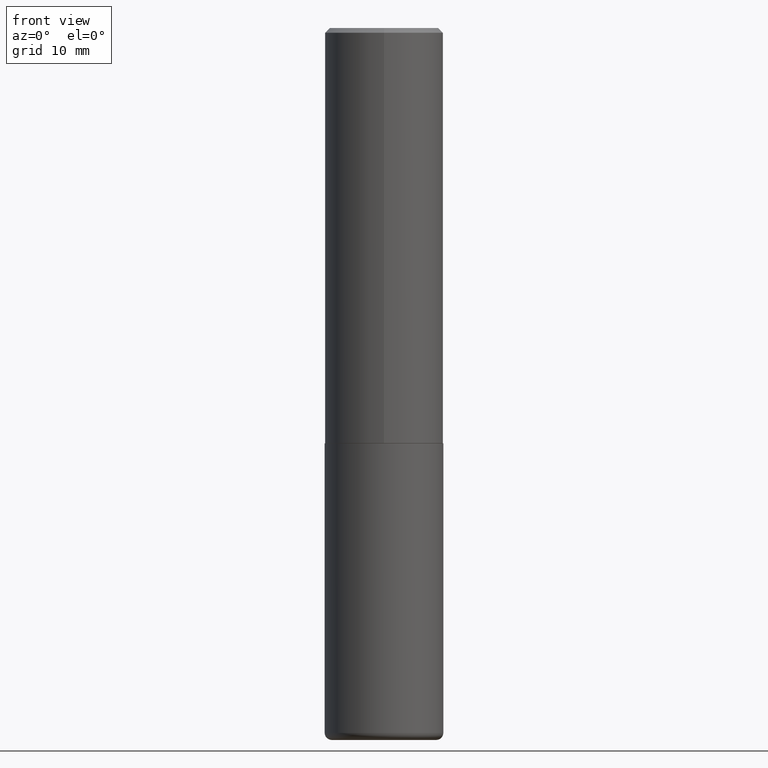
[diagram: clean part render]
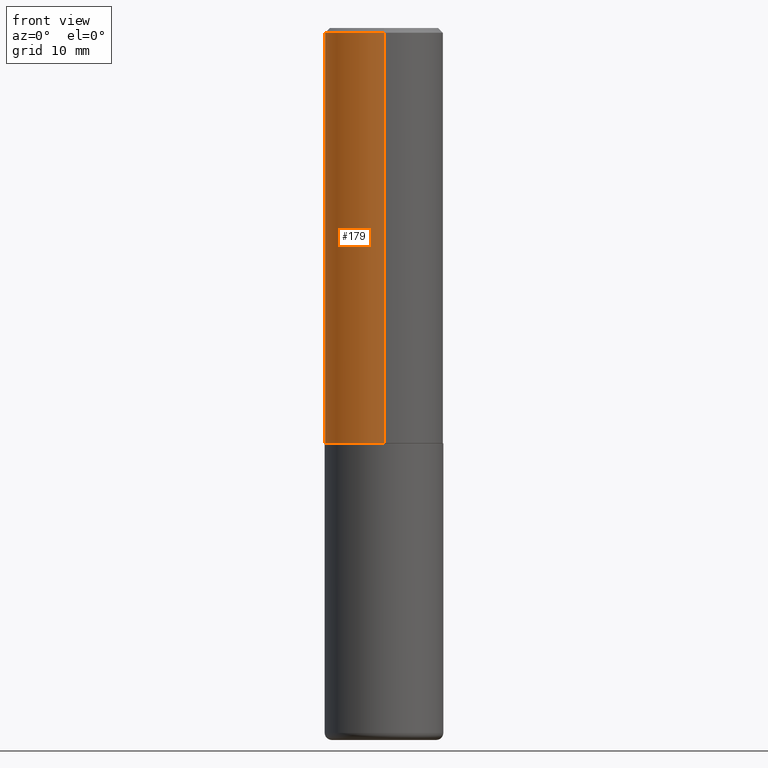
[diagram: same view with one face highlighted and labeled with its STEP entity id]
A machine part, front view. The second image highlights one B-rep face of the part: STEP entity #179.
In plain terms, the highlighted cylindrical surface (partial cylindrical patch) has radius 6.35 mm, axis along (-0, 0, 1).
Its self-contained STEP definition (entity closure, byte-faithful):
#2 = CARTESIAN_POINT ( 'NONE',  ( 4.890144249563362123E-31, -6.984098818381232815E-17, -0.02000000000000005593 ) ) ;
#6 = LINE ( 'NONE', #59, #158 ) ;
#36 = LINE ( 'NONE', #301, #49 ) ;
#39 = AXIS2_PLACEMENT_3D ( 'NONE', #177, #159, #45 ) ;
#45 = DIRECTION ( 'NONE',  ( -6.982962677686265133E-15, -1.000000000000000000, 3.278217592397113101E-15 ) ) ;
#49 = VECTOR ( 'NONE', #146, 39.37007874015748143 ) ;
#59 = CARTESIAN_POINT ( 'NONE',  ( -1.745740669421567467E-15, -0.2500000000000001110, 8.730123522976521790E-16 ) ) ;
#69 = ORIENTED_EDGE ( 'NONE', *, *, #296, .T. ) ;
#72 = ORIENTED_EDGE ( 'NONE', *, *, #160, .T. ) ;
#77 = VERTEX_POINT ( 'NONE', #366 ) ;
#82 = CIRCLE ( 'NONE', #101, 0.2500000000000000555 ) ;
#95 = VERTEX_POINT ( 'NONE', #143 ) ;
#97 = DIRECTION ( 'NONE',  ( -2.445072124781674107E-29, 3.492049409190606350E-15, 1.000000000000000000 ) ) ;
#101 = AXIS2_PLACEMENT_3D ( 'NONE', #2, #412, #297 ) ;
#117 = CYLINDRICAL_SURFACE ( 'NONE', #135, 0.2500000000000001110 ) ;
#127 = ORIENTED_EDGE ( 'NONE', *, *, #292, .F. ) ;
#135 = AXIS2_PLACEMENT_3D ( 'NONE', #229, #144, #288 ) ;
#143 = CARTESIAN_POINT ( 'NONE',  ( 1.776356839400273342E-15, 0.2499999999999941158, -1.749000000000000554 ) ) ;
#144 = DIRECTION ( 'NONE',  ( -2.445072124781674388E-29, 3.492049409190606744E-15, 1.000000000000000000 ) ) ;
#146 = DIRECTION ( 'NONE',  ( -2.445072124781674107E-29, 3.492049409190606350E-15, 1.000000000000000000 ) ) ;
#154 = CIRCLE ( 'NONE', #39, 0.2500000000000002220 ) ;
#158 = VECTOR ( 'NONE', #97, 39.37007874015748143 ) ;
#159 = DIRECTION ( 'NONE',  ( -2.445072124781674388E-29, 3.492049409190606744E-15, 1.000000000000000000 ) ) ;
#160 = EDGE_CURVE ( 'NONE', #95, #302, #154, .T. ) ;
#177 = CARTESIAN_POINT ( 'NONE',  ( 4.276431146243148366E-29, -6.107594416674370195E-15, -1.748999999999999888 ) ) ;
#179 = ADVANCED_FACE ( 'NONE', ( #181 ), #117, .T. ) ;
#181 = FACE_OUTER_BOUND ( 'NONE', #218, .T. ) ;
#218 = EDGE_LOOP ( 'NONE', ( #392, #72, #69, #127 ) ) ;
#227 = EDGE_CURVE ( 'NONE', #95, #410, #36, .T. ) ;
#229 = CARTESIAN_POINT ( 'NONE',  ( 0.000000000000000000, 0.000000000000000000, 0.000000000000000000 ) ) ;
#288 = DIRECTION ( 'NONE',  ( -6.982962677686266711E-15, -1.000000000000000000, 3.492049409190607138E-15 ) ) ;
#292 = EDGE_CURVE ( 'NONE', #410, #77, #82, .T. ) ;
#296 = EDGE_CURVE ( 'NONE', #302, #77, #6, .T. ) ;
#297 = DIRECTION ( 'NONE',  ( -6.982962677686265922E-15, -1.000000000000000000, 3.500180241882336472E-15 ) ) ;
#301 = CARTESIAN_POINT ( 'NONE',  ( 1.776356839400251254E-15, 0.2500000000000001110, -8.730123522976521790E-16 ) ) ;
#302 = VERTEX_POINT ( 'NONE', #387 ) ;
#359 = CARTESIAN_POINT ( 'NONE',  ( 1.745740669421567467E-15, 0.2500000000000000000, -0.02000000000000093023 ) ) ;
#366 = CARTESIAN_POINT ( 'NONE',  ( -1.715124499442882693E-15, -0.2500000000000001110, -0.01999999999999918163 ) ) ;
#387 = CARTESIAN_POINT ( 'NONE',  ( -1.745740669421525262E-15, -0.2500000000000063283, -1.748999999999999000 ) ) ;
#392 = ORIENTED_EDGE ( 'NONE', *, *, #227, .F. ) ;
#410 = VERTEX_POINT ( 'NONE', #359 ) ;
#412 = DIRECTION ( 'NONE',  ( -2.445072124781674388E-29, 3.492049409190606744E-15, 1.000000000000000000 ) ) ;